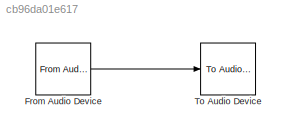
MODEL slx_cb96da01e617
KIND model
BLOCK [Reference] From Audio Device  REF=dspsrcs4/From Audio
Device
  Ports = [0, 1]
  SourceBlock = dspsrcs4/From Audio\nDevice
  SourceType = From Audio Device
  autoBufferSize = on
  bufferSize = 4096
  deviceDatatype = Determine from output data type
  deviceName = Default
  frameSize = 1024
  numChannels = 2
  outputDatatype = single
  queueDuration = 1.0
  sampleRate = 44100
BLOCK [Reference] To Audio Device  REF=dspsnks4/To Audio
Device
  Ports = [1]
  SourceBlock = dspsnks4/To Audio\nDevice
  SourceType = To Audio Device
  autoBufferSize = on
  bufferSize = 4096
  deviceDatatype = Determine from input data type
  deviceName = Default
  inheritSampleRate = on
  queueDuration = 1.0
  sampleRate = 44100
LINE From Audio Device:1 -> To Audio Device:1
